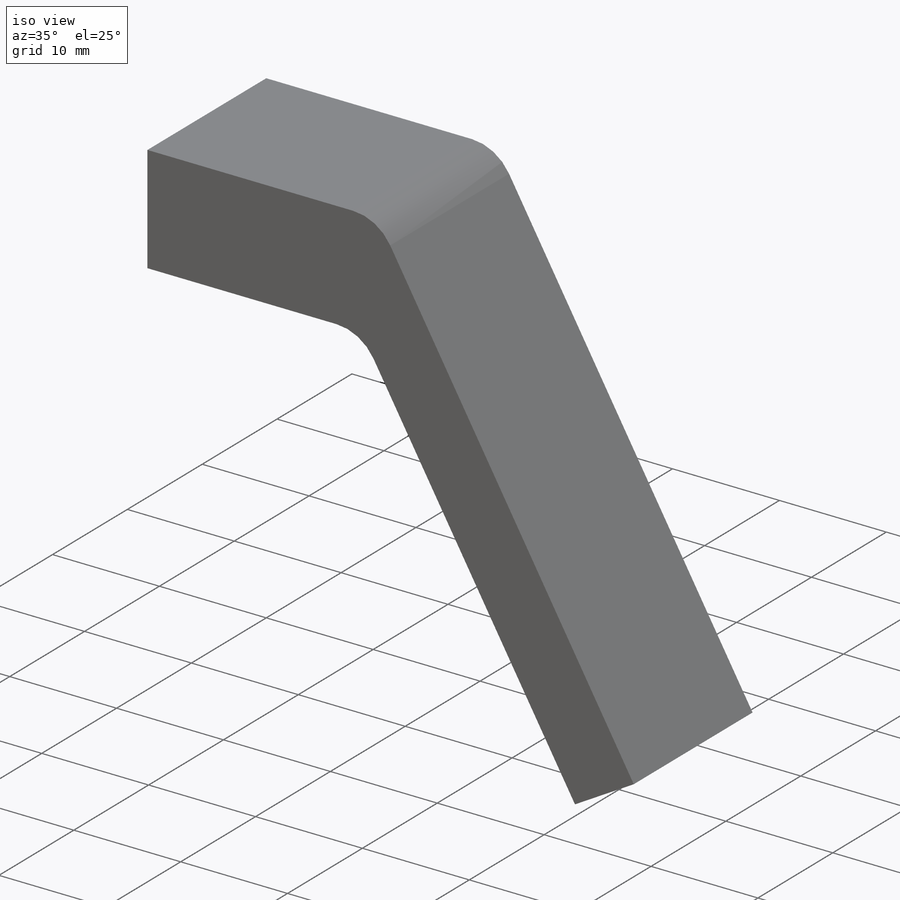
[diagram: iso view]
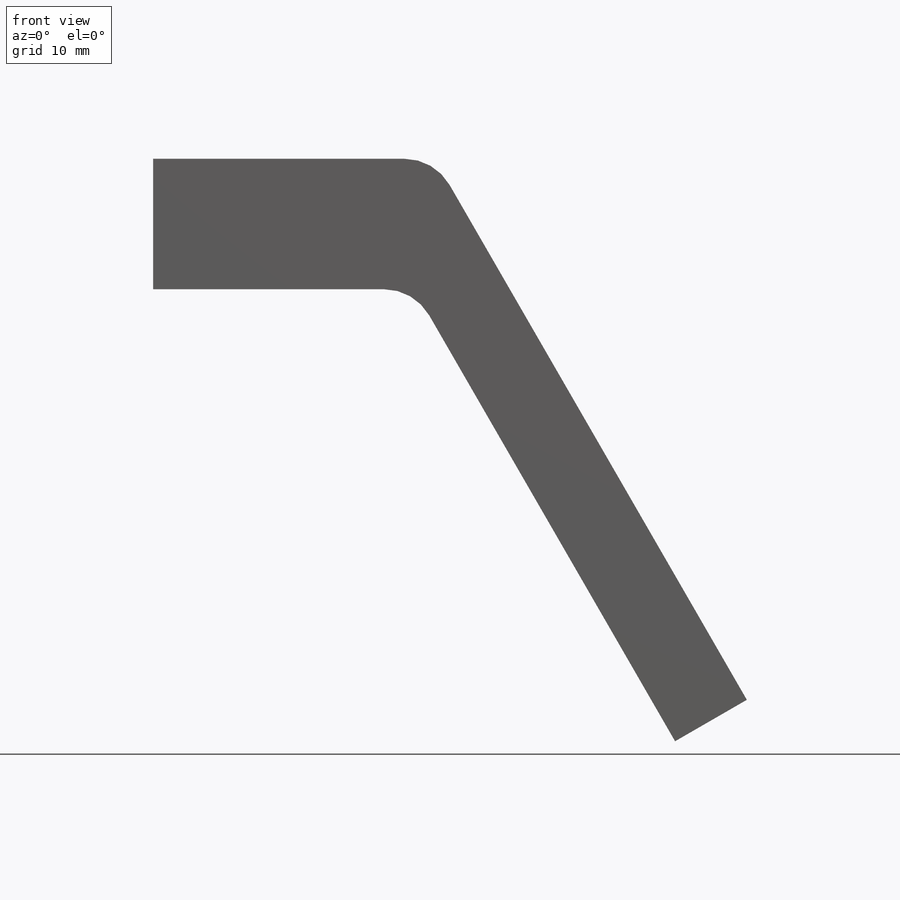
[diagram: front view]
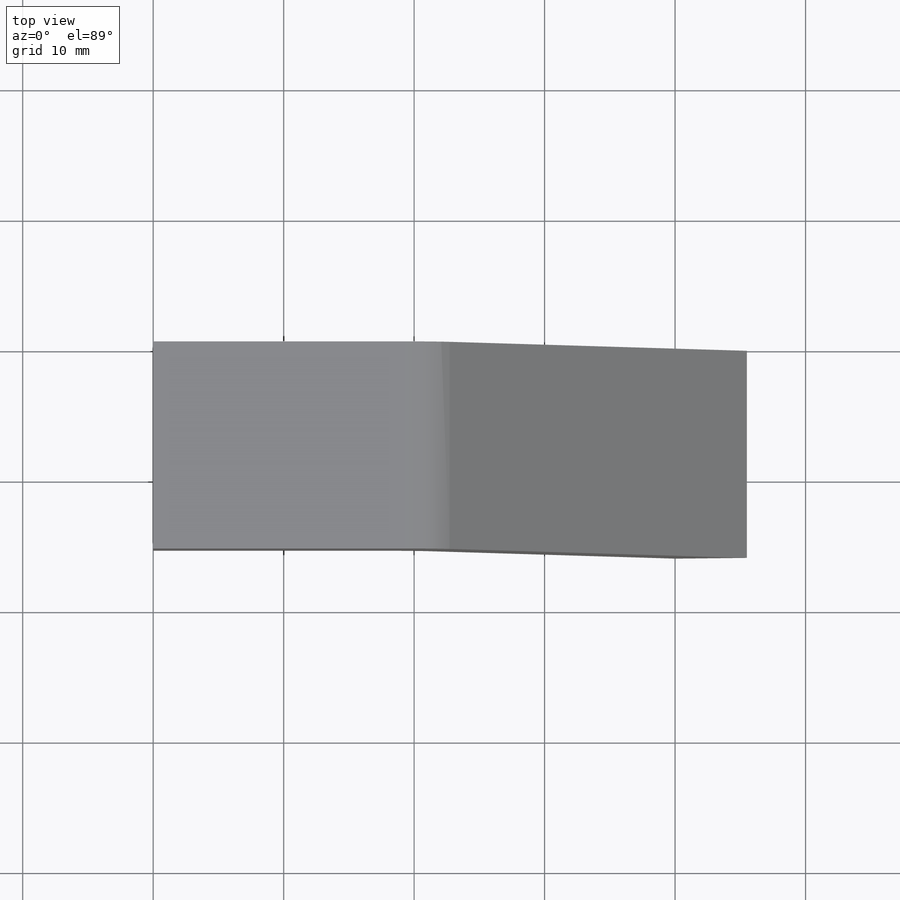
[diagram: top view]
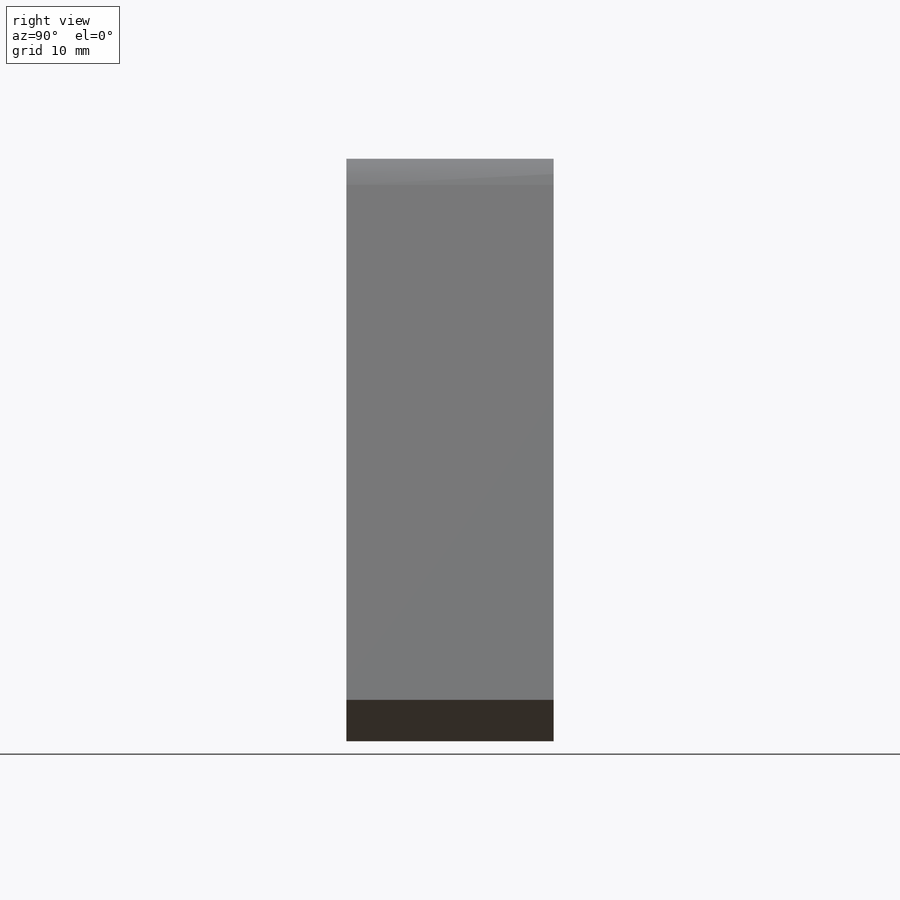
[diagram: right view]
SOLIDWORKS PART (.sldprt)
format: sldprt  version: not decoded by parser v0  size: 291,328 bytes
history: native  units: mm
features: sketch x3, cut_extrude x2, material x1, extrude x1, fillet x1 (+16 scaffold rows collapsed)
feature tree (24):
  scaffold x16  (default folders/planes/origin — collapsed)
  material  "Stainless Steel (ferritic)"
  sketch  "Sketch1"  dims[c1.D1=10.0mm c1.D2=6.35mm c1.D3=~29.063939mm c2.D3=120.0deg c2.D4=40.0mm c2.D5=20.0mm]
  extrude  "Boss-Extrude1"  Depth=15.875mm
  sketch  "Sketch2"  dims[D1=11.0mm]
  cut_extrude  "Cut-Extrude1"  Depth=2mm
  sketch  "Sketch3"  dims[D1=9.8mm]
  cut_extrude  "Cut-Extrude2"  [1 undecoded]
  fillet  "Fillet1"  Radius=4mm
decode coverage: 6 of 7 modeling features carry decoded parameters
note: ~ marks probable driven/reference dimensions
note: 1 parameter value undecoded
note: suppression state not decoded; provenance and decode notes live in map.json
